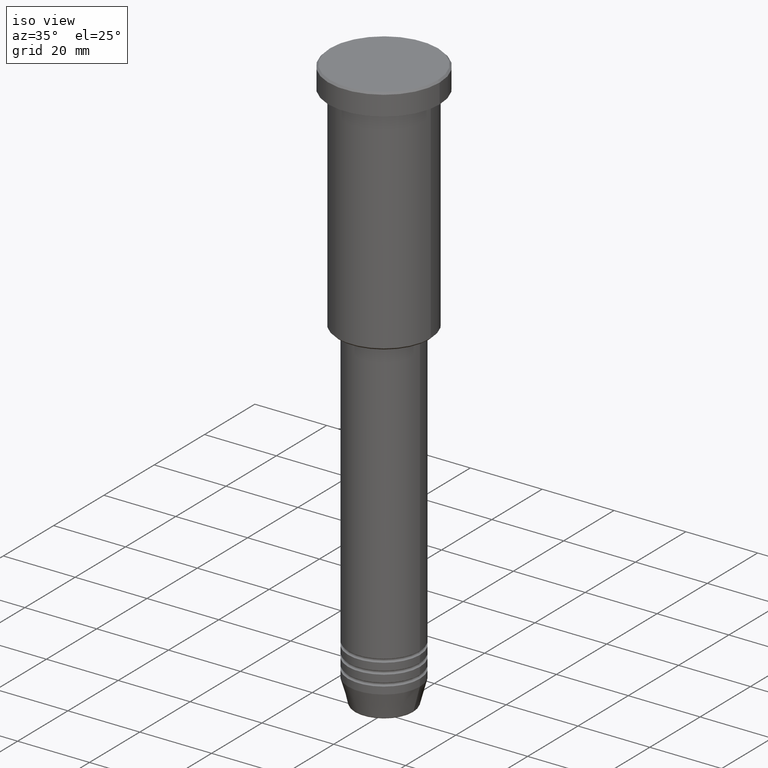
[diagram: clean part render]
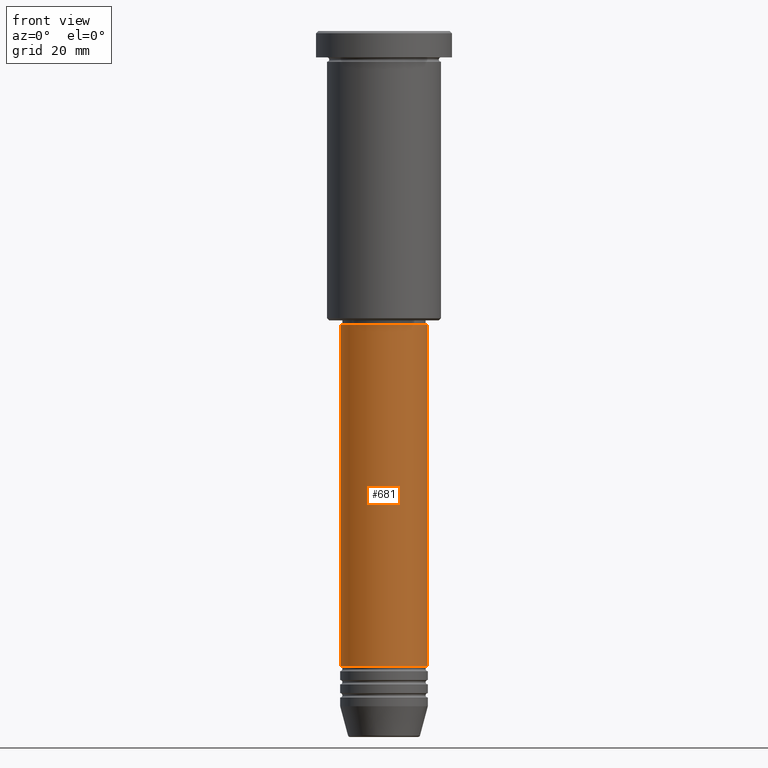
[diagram: tour spotlight — one face highlighted and labeled with its STEP entity id]
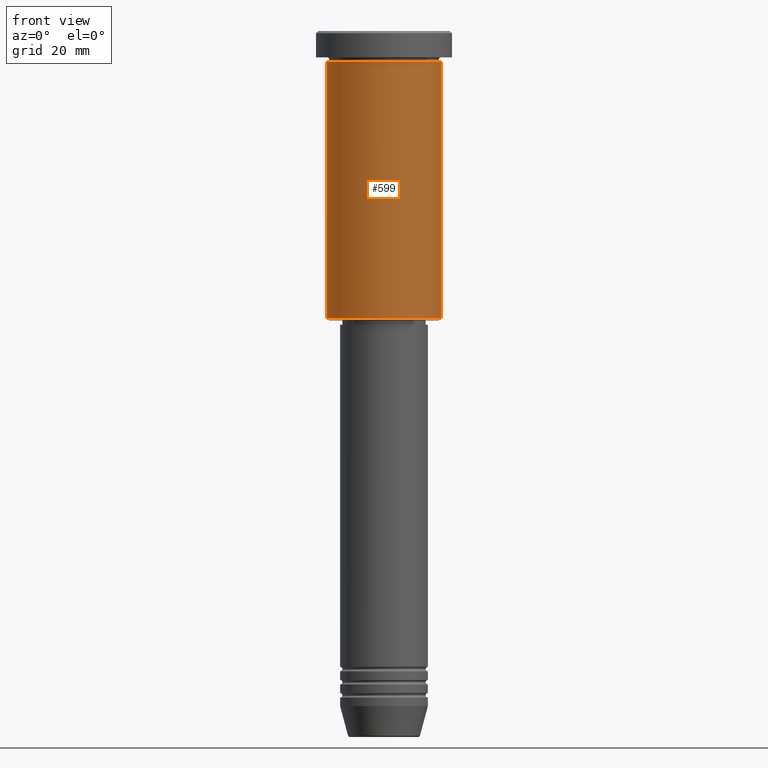
[diagram: tour spotlight — one face highlighted and labeled with its STEP entity id]
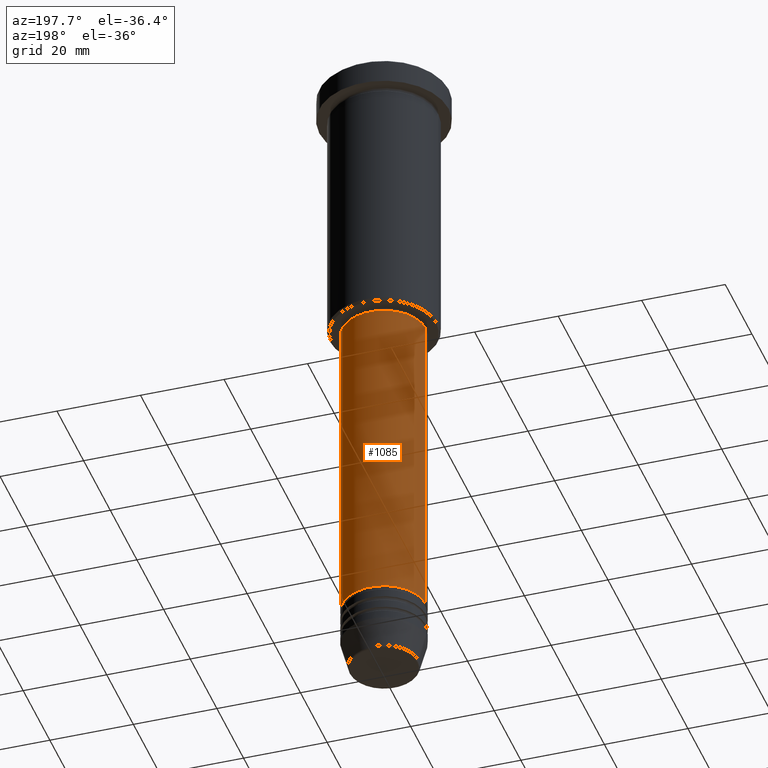
[diagram: tour spotlight — one face highlighted and labeled with its STEP entity id]
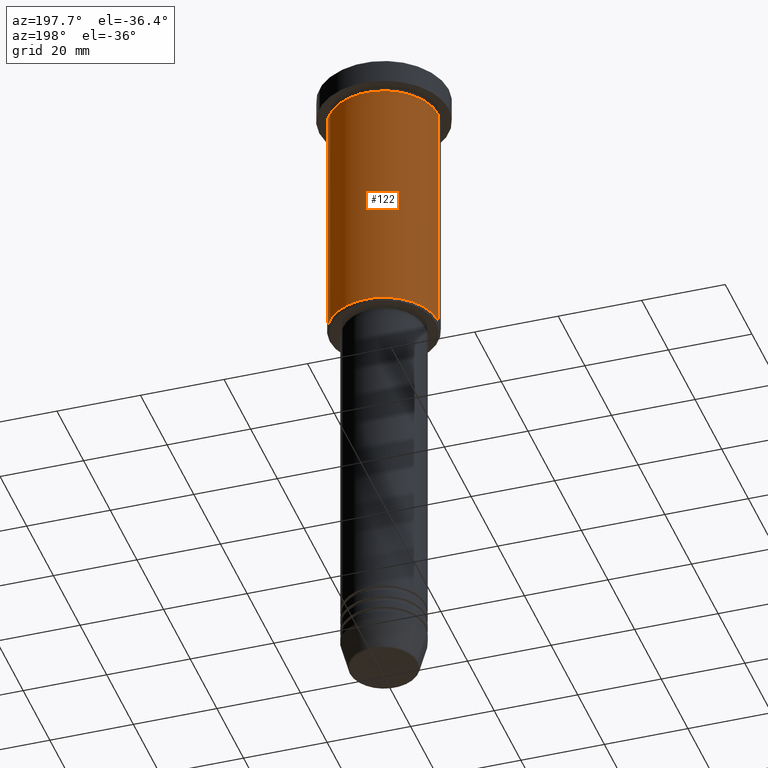
[diagram: tour spotlight — one face highlighted and labeled with its STEP entity id]
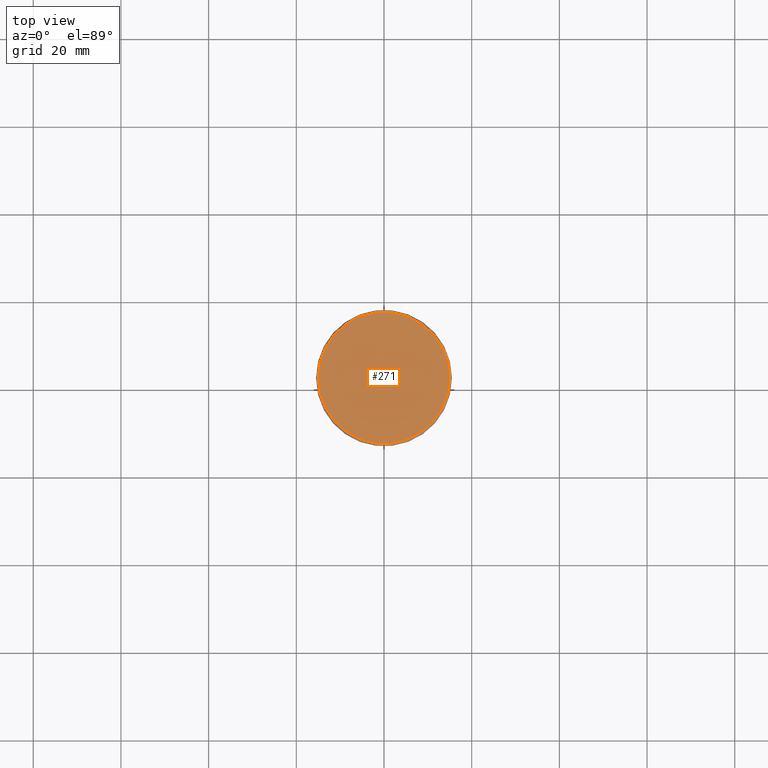
[diagram: tour spotlight — one face highlighted and labeled with its STEP entity id]
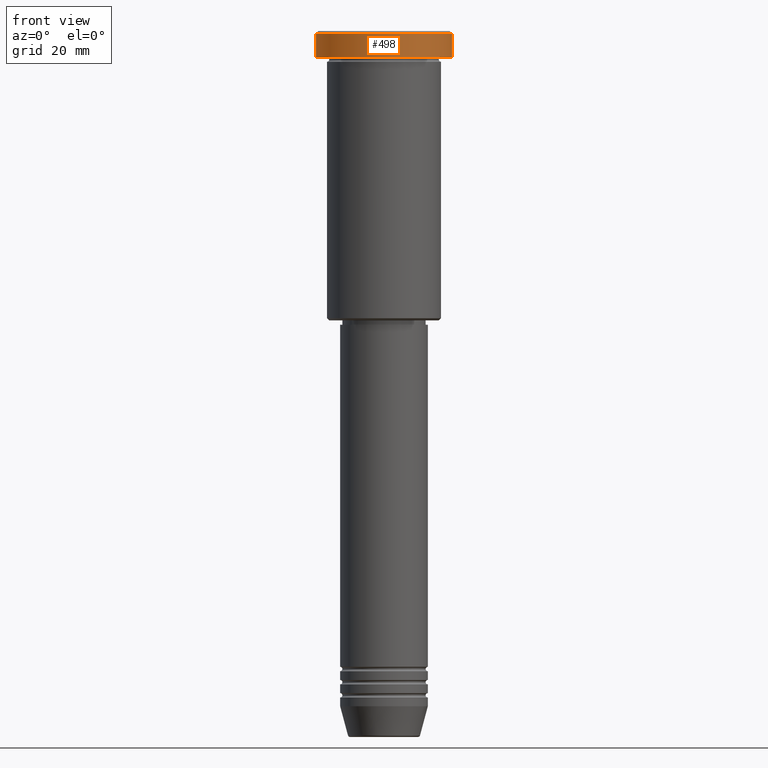
[diagram: tour spotlight — one face highlighted and labeled with its STEP entity id]
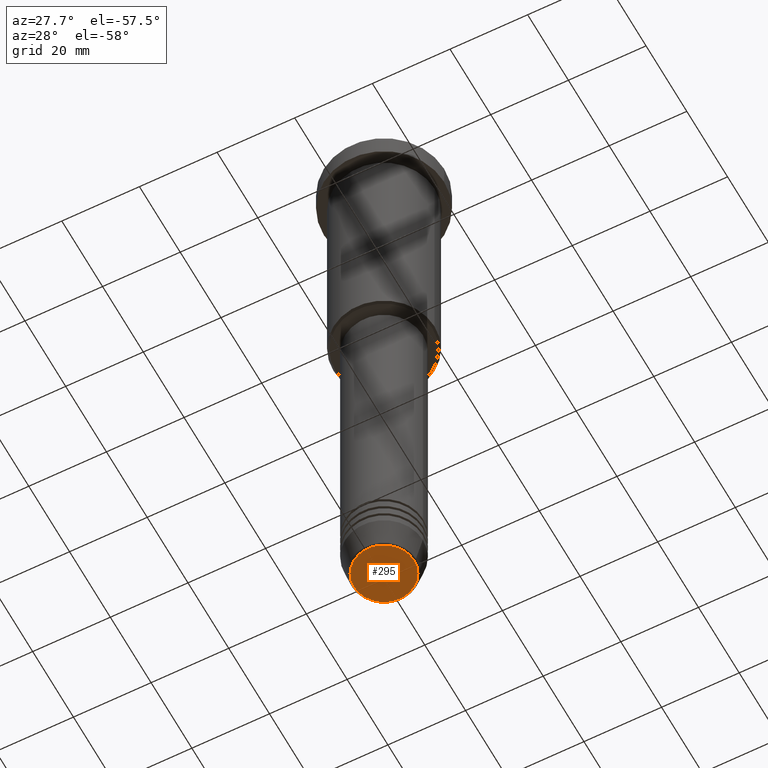
[diagram: tour spotlight — one face highlighted and labeled with its STEP entity id]
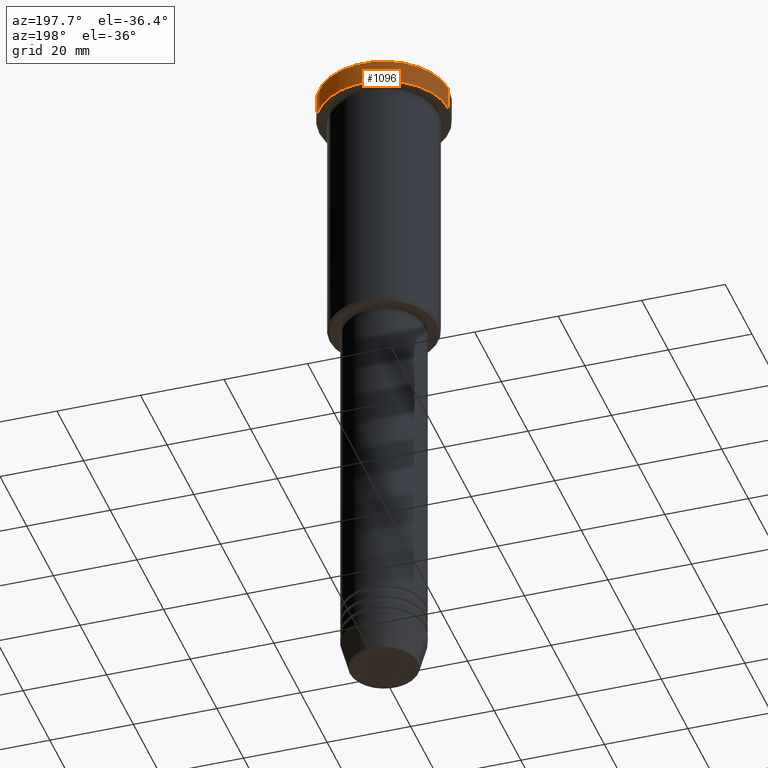
[diagram: tour spotlight — one face highlighted and labeled with its STEP entity id]
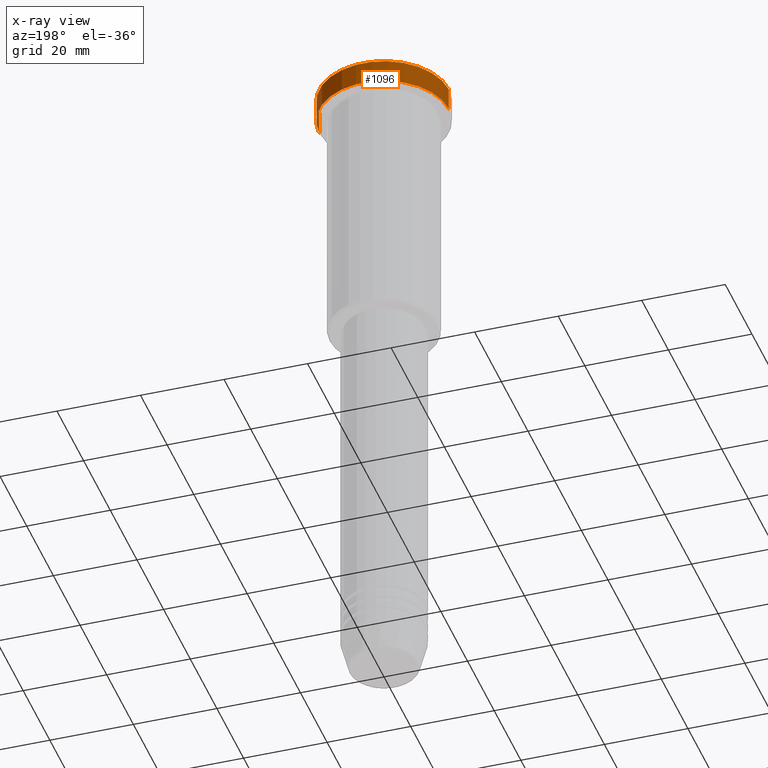
[diagram: x-ray of the same camera — body ghosted, this tour face saturated]
A machine part: a face-by-face anatomy tour. The part has 43 B-rep faces; the first image is the clean iso view, then the 8 largest visible faces are spotlighted one at a time (largest first), each with its STEP entity span.

Face 1 — front view, entity #681. In plain terms, the highlighted cylindrical surface (partial cylindrical patch) has radius 10 mm, axis along (-0, -0, 1).
Definition (entity closure, byte-faithful):
#50 = DIRECTION ( 'NONE',  ( -0.000000000000000000, -0.000000000000000000, 1.000000000000000000 ) ) ;
#79 = ORIENTED_EDGE ( 'NONE', *, *, #749, .T. ) ;
#98 = ORIENTED_EDGE ( 'NONE', *, *, #1171, .T. ) ;
#134 = AXIS2_PLACEMENT_3D ( 'NONE', #160, #50, #502 ) ;
#143 = DIRECTION ( 'NONE',  ( -0.000000000000000000, -0.000000000000000000, 1.000000000000000000 ) ) ;
#160 = CARTESIAN_POINT ( 'NONE',  ( 0.000000000000000000, 0.000000000000000000, -144.9999999999999716 ) ) ;
#169 = CIRCLE ( 'NONE', #855, 10.00000000000000000 ) ;
#193 = DIRECTION ( 'NONE',  ( -0.000000000000000000, -0.000000000000000000, 1.000000000000000000 ) ) ;
#218 = DIRECTION ( 'NONE',  ( 1.000000000000000000, 0.000000000000000000, 0.000000000000000000 ) ) ;
#229 = CARTESIAN_POINT ( 'NONE',  ( 10.00000000000000000, 0.000000000000000000, -144.9999999999999716 ) ) ;
#306 = VERTEX_POINT ( 'NONE', #229 ) ;
#308 = CARTESIAN_POINT ( 'NONE',  ( 0.000000000000000000, 0.000000000000000000, 0.000000000000000000 ) ) ;
#335 = CARTESIAN_POINT ( 'NONE',  ( 10.00000000000000000, 0.000000000000000000, 0.000000000000000000 ) ) ;
#375 = LINE ( 'NONE', #448, #625 ) ;
#384 = CARTESIAN_POINT ( 'NONE',  ( 10.00000000000000000, 0.000000000000000000, -67.00000000000000000 ) ) ;
#396 = VERTEX_POINT ( 'NONE', #621 ) ;
#448 = CARTESIAN_POINT ( 'NONE',  ( -10.00000000000000000, 1.224646799147353256E-15, 0.000000000000000000 ) ) ;
#502 = DIRECTION ( 'NONE',  ( 1.000000000000000000, 0.000000000000000000, 0.000000000000000000 ) ) ;
#522 = LINE ( 'NONE', #335, #688 ) ;
#540 = VERTEX_POINT ( 'NONE', #384 ) ;
#566 = AXIS2_PLACEMENT_3D ( 'NONE', #308, #673, #218 ) ;
#573 = ORIENTED_EDGE ( 'NONE', *, *, #960, .F. ) ;
#621 = CARTESIAN_POINT ( 'NONE',  ( -10.00000000000000000, 1.224646799147353256E-15, -67.00000000000000000 ) ) ;
#625 = VECTOR ( 'NONE', #924, 1000.000000000000000 ) ;
#626 = CIRCLE ( 'NONE', #134, 10.00000000000000000 ) ;
#673 = DIRECTION ( 'NONE',  ( -0.000000000000000000, -0.000000000000000000, 1.000000000000000000 ) ) ;
#681 = ADVANCED_FACE ( 'NONE', ( #755 ), #1120, .T. ) ;
#688 = VECTOR ( 'NONE', #143, 1000.000000000000000 ) ;
#702 = CARTESIAN_POINT ( 'NONE',  ( -10.00000000000000000, 1.224646799147353256E-15, -144.9999999999999716 ) ) ;
#749 = EDGE_CURVE ( 'NONE', #306, #540, #522, .T. ) ;
#755 = FACE_OUTER_BOUND ( 'NONE', #912, .T. ) ;
#855 = AXIS2_PLACEMENT_3D ( 'NONE', #900, #193, #996 ) ;
#900 = CARTESIAN_POINT ( 'NONE',  ( 0.000000000000000000, 0.000000000000000000, -67.00000000000000000 ) ) ;
#912 = EDGE_LOOP ( 'NONE', ( #573, #98, #79, #1036 ) ) ;
#921 = EDGE_CURVE ( 'NONE', #396, #540, #169, .T. ) ;
#924 = DIRECTION ( 'NONE',  ( -0.000000000000000000, -0.000000000000000000, 1.000000000000000000 ) ) ;
#960 = EDGE_CURVE ( 'NONE', #1178, #396, #375, .T. ) ;
#996 = DIRECTION ( 'NONE',  ( 1.000000000000000000, 0.000000000000000000, 0.000000000000000000 ) ) ;
#1036 = ORIENTED_EDGE ( 'NONE', *, *, #921, .F. ) ;
#1120 = CYLINDRICAL_SURFACE ( 'NONE', #566, 10.00000000000000000 ) ;
#1171 = EDGE_CURVE ( 'NONE', #1178, #306, #626, .T. ) ;
#1178 = VERTEX_POINT ( 'NONE', #702 ) ;

Face 2 — front view, entity #599. In plain terms, the highlighted cylindrical surface (partial cylindrical patch) has radius 13 mm, axis along (-0, -0, 1).
Definition (entity closure, byte-faithful):
#14 = CARTESIAN_POINT ( 'NONE',  ( -13.00000000000000000, 1.592040838891559095E-15, -65.49999999999997158 ) ) ;
#21 = DIRECTION ( 'NONE',  ( -0.000000000000000000, -0.000000000000000000, 1.000000000000000000 ) ) ;
#107 = CIRCLE ( 'NONE', #602, 13.00000000000000000 ) ;
#127 = CARTESIAN_POINT ( 'NONE',  ( 13.00000000000000000, 0.000000000000000000, -65.49999999999997158 ) ) ;
#151 = CARTESIAN_POINT ( 'NONE',  ( 13.00000000000000000, 0.000000000000000000, -6.999999999999995559 ) ) ;
#167 = CIRCLE ( 'NONE', #829, 13.00000000000000000 ) ;
#202 = DIRECTION ( 'NONE',  ( -0.000000000000000000, -0.000000000000000000, 1.000000000000000000 ) ) ;
#210 = DIRECTION ( 'NONE',  ( 1.000000000000000000, 0.000000000000000000, 0.000000000000000000 ) ) ;
#216 = EDGE_CURVE ( 'NONE', #220, #558, #107, .T. ) ;
#220 = VERTEX_POINT ( 'NONE', #14 ) ;
#249 = VERTEX_POINT ( 'NONE', #452 ) ;
#250 = CARTESIAN_POINT ( 'NONE',  ( 0.000000000000000000, 0.000000000000000000, -6.999999999999995559 ) ) ;
#278 = ORIENTED_EDGE ( 'NONE', *, *, #848, .F. ) ;
#356 = DIRECTION ( 'NONE',  ( -0.000000000000000000, -0.000000000000000000, 1.000000000000000000 ) ) ;
#404 = ORIENTED_EDGE ( 'NONE', *, *, #534, .T. ) ;
#420 = DIRECTION ( 'NONE',  ( 1.000000000000000000, 0.000000000000000000, 0.000000000000000000 ) ) ;
#442 = CARTESIAN_POINT ( 'NONE',  ( 13.00000000000000000, 0.000000000000000000, 0.000000000000000000 ) ) ;
#452 = CARTESIAN_POINT ( 'NONE',  ( -13.00000000000000000, 1.592040838891559095E-15, -6.999999999999995559 ) ) ;
#497 = CYLINDRICAL_SURFACE ( 'NONE', #605, 13.00000000000000000 ) ;
#534 = EDGE_CURVE ( 'NONE', #558, #826, #655, .T. ) ;
#545 = DIRECTION ( 'NONE',  ( -1.000000000000000000, 0.000000000000000000, 0.000000000000000000 ) ) ;
#558 = VERTEX_POINT ( 'NONE', #127 ) ;
#592 = ORIENTED_EDGE ( 'NONE', *, *, #216, .T. ) ;
#599 = ADVANCED_FACE ( 'NONE', ( #947 ), #497, .T. ) ;
#602 = AXIS2_PLACEMENT_3D ( 'NONE', #1091, #21, #545 ) ;
#605 = AXIS2_PLACEMENT_3D ( 'NONE', #763, #841, #210 ) ;
#609 = DIRECTION ( 'NONE',  ( -0.000000000000000000, -0.000000000000000000, 1.000000000000000000 ) ) ;
#655 = LINE ( 'NONE', #442, #759 ) ;
#691 = VECTOR ( 'NONE', #356, 1000.000000000000000 ) ;
#703 = LINE ( 'NONE', #1066, #691 ) ;
#756 = EDGE_CURVE ( 'NONE', #249, #826, #167, .T. ) ;
#759 = VECTOR ( 'NONE', #202, 1000.000000000000000 ) ;
#763 = CARTESIAN_POINT ( 'NONE',  ( 0.000000000000000000, 0.000000000000000000, 0.000000000000000000 ) ) ;
#826 = VERTEX_POINT ( 'NONE', #151 ) ;
#829 = AXIS2_PLACEMENT_3D ( 'NONE', #250, #609, #420 ) ;
#841 = DIRECTION ( 'NONE',  ( -0.000000000000000000, -0.000000000000000000, 1.000000000000000000 ) ) ;
#848 = EDGE_CURVE ( 'NONE', #220, #249, #703, .T. ) ;
#934 = ORIENTED_EDGE ( 'NONE', *, *, #756, .F. ) ;
#947 = FACE_OUTER_BOUND ( 'NONE', #1098, .T. ) ;
#1066 = CARTESIAN_POINT ( 'NONE',  ( -13.00000000000000000, 1.592040838891559095E-15, 0.000000000000000000 ) ) ;
#1091 = CARTESIAN_POINT ( 'NONE',  ( 0.000000000000000000, 0.000000000000000000, -65.49999999999997158 ) ) ;
#1098 = EDGE_LOOP ( 'NONE', ( #278, #592, #404, #934 ) ) ;

Face 3 — auxiliary view, entity #1085. In plain terms, the highlighted cylindrical surface (partial cylindrical patch) has radius 10 mm, axis along (-0, -0, 1).
Definition (entity closure, byte-faithful):
#119 = ORIENTED_EDGE ( 'NONE', *, *, #513, .T. ) ;
#143 = DIRECTION ( 'NONE',  ( -0.000000000000000000, -0.000000000000000000, 1.000000000000000000 ) ) ;
#197 = EDGE_CURVE ( 'NONE', #540, #396, #622, .T. ) ;
#229 = CARTESIAN_POINT ( 'NONE',  ( 10.00000000000000000, 0.000000000000000000, -144.9999999999999716 ) ) ;
#247 = AXIS2_PLACEMENT_3D ( 'NONE', #753, #1118, #1136 ) ;
#306 = VERTEX_POINT ( 'NONE', #229 ) ;
#335 = CARTESIAN_POINT ( 'NONE',  ( 10.00000000000000000, 0.000000000000000000, 0.000000000000000000 ) ) ;
#375 = LINE ( 'NONE', #448, #625 ) ;
#381 = CARTESIAN_POINT ( 'NONE',  ( 0.000000000000000000, 0.000000000000000000, -67.00000000000000000 ) ) ;
#384 = CARTESIAN_POINT ( 'NONE',  ( 10.00000000000000000, 0.000000000000000000, -67.00000000000000000 ) ) ;
#396 = VERTEX_POINT ( 'NONE', #621 ) ;
#448 = CARTESIAN_POINT ( 'NONE',  ( -10.00000000000000000, 1.224646799147353256E-15, 0.000000000000000000 ) ) ;
#450 = DIRECTION ( 'NONE',  ( -0.000000000000000000, -0.000000000000000000, 1.000000000000000000 ) ) ;
#496 = ORIENTED_EDGE ( 'NONE', *, *, #749, .F. ) ;
#508 = CIRCLE ( 'NONE', #1177, 10.00000000000000000 ) ;
#513 = EDGE_CURVE ( 'NONE', #306, #1178, #508, .T. ) ;
#522 = LINE ( 'NONE', #335, #688 ) ;
#523 = EDGE_LOOP ( 'NONE', ( #119, #944, #1083, #496 ) ) ;
#540 = VERTEX_POINT ( 'NONE', #384 ) ;
#621 = CARTESIAN_POINT ( 'NONE',  ( -10.00000000000000000, 1.224646799147353256E-15, -67.00000000000000000 ) ) ;
#622 = CIRCLE ( 'NONE', #642, 10.00000000000000000 ) ;
#625 = VECTOR ( 'NONE', #924, 1000.000000000000000 ) ;
#642 = AXIS2_PLACEMENT_3D ( 'NONE', #381, #1095, #1182 ) ;
#660 = FACE_OUTER_BOUND ( 'NONE', #523, .T. ) ;
#688 = VECTOR ( 'NONE', #143, 1000.000000000000000 ) ;
#702 = CARTESIAN_POINT ( 'NONE',  ( -10.00000000000000000, 1.224646799147353256E-15, -144.9999999999999716 ) ) ;
#735 = CARTESIAN_POINT ( 'NONE',  ( 0.000000000000000000, 0.000000000000000000, -144.9999999999999716 ) ) ;
#749 = EDGE_CURVE ( 'NONE', #306, #540, #522, .T. ) ;
#753 = CARTESIAN_POINT ( 'NONE',  ( 0.000000000000000000, 0.000000000000000000, 0.000000000000000000 ) ) ;
#839 = CYLINDRICAL_SURFACE ( 'NONE', #247, 10.00000000000000000 ) ;
#924 = DIRECTION ( 'NONE',  ( -0.000000000000000000, -0.000000000000000000, 1.000000000000000000 ) ) ;
#944 = ORIENTED_EDGE ( 'NONE', *, *, #960, .T. ) ;
#960 = EDGE_CURVE ( 'NONE', #1178, #396, #375, .T. ) ;
#1083 = ORIENTED_EDGE ( 'NONE', *, *, #197, .F. ) ;
#1085 = ADVANCED_FACE ( 'NONE', ( #660 ), #839, .T. ) ;
#1095 = DIRECTION ( 'NONE',  ( -0.000000000000000000, -0.000000000000000000, 1.000000000000000000 ) ) ;
#1109 = DIRECTION ( 'NONE',  ( 1.000000000000000000, 0.000000000000000000, 0.000000000000000000 ) ) ;
#1118 = DIRECTION ( 'NONE',  ( -0.000000000000000000, -0.000000000000000000, 1.000000000000000000 ) ) ;
#1136 = DIRECTION ( 'NONE',  ( 1.000000000000000000, 0.000000000000000000, 0.000000000000000000 ) ) ;
#1177 = AXIS2_PLACEMENT_3D ( 'NONE', #735, #450, #1109 ) ;
#1178 = VERTEX_POINT ( 'NONE', #702 ) ;
#1182 = DIRECTION ( 'NONE',  ( 1.000000000000000000, 0.000000000000000000, 0.000000000000000000 ) ) ;

Face 4 — auxiliary view, entity #122. In plain terms, the highlighted cylindrical surface (partial cylindrical patch) has radius 13 mm, axis along (-0, -0, 1).
Definition (entity closure, byte-faithful):
#14 = CARTESIAN_POINT ( 'NONE',  ( -13.00000000000000000, 1.592040838891559095E-15, -65.49999999999997158 ) ) ;
#27 = EDGE_CURVE ( 'NONE', #558, #220, #1180, .T. ) ;
#66 = DIRECTION ( 'NONE',  ( -1.000000000000000000, 0.000000000000000000, 0.000000000000000000 ) ) ;
#122 = ADVANCED_FACE ( 'NONE', ( #897 ), #539, .T. ) ;
#127 = CARTESIAN_POINT ( 'NONE',  ( 13.00000000000000000, 0.000000000000000000, -65.49999999999997158 ) ) ;
#145 = AXIS2_PLACEMENT_3D ( 'NONE', #354, #258, #66 ) ;
#151 = CARTESIAN_POINT ( 'NONE',  ( 13.00000000000000000, 0.000000000000000000, -6.999999999999995559 ) ) ;
#195 = DIRECTION ( 'NONE',  ( -0.000000000000000000, -0.000000000000000000, 1.000000000000000000 ) ) ;
#202 = DIRECTION ( 'NONE',  ( -0.000000000000000000, -0.000000000000000000, 1.000000000000000000 ) ) ;
#217 = EDGE_LOOP ( 'NONE', ( #1149, #844, #227, #1074 ) ) ;
#220 = VERTEX_POINT ( 'NONE', #14 ) ;
#227 = ORIENTED_EDGE ( 'NONE', *, *, #453, .F. ) ;
#249 = VERTEX_POINT ( 'NONE', #452 ) ;
#258 = DIRECTION ( 'NONE',  ( -0.000000000000000000, -0.000000000000000000, 1.000000000000000000 ) ) ;
#307 = AXIS2_PLACEMENT_3D ( 'NONE', #903, #1174, #423 ) ;
#354 = CARTESIAN_POINT ( 'NONE',  ( 0.000000000000000000, 0.000000000000000000, -65.49999999999997158 ) ) ;
#356 = DIRECTION ( 'NONE',  ( -0.000000000000000000, -0.000000000000000000, 1.000000000000000000 ) ) ;
#423 = DIRECTION ( 'NONE',  ( 1.000000000000000000, 0.000000000000000000, 0.000000000000000000 ) ) ;
#442 = CARTESIAN_POINT ( 'NONE',  ( 13.00000000000000000, 0.000000000000000000, 0.000000000000000000 ) ) ;
#452 = CARTESIAN_POINT ( 'NONE',  ( -13.00000000000000000, 1.592040838891559095E-15, -6.999999999999995559 ) ) ;
#453 = EDGE_CURVE ( 'NONE', #826, #249, #644, .T. ) ;
#534 = EDGE_CURVE ( 'NONE', #558, #826, #655, .T. ) ;
#539 = CYLINDRICAL_SURFACE ( 'NONE', #307, 13.00000000000000000 ) ;
#558 = VERTEX_POINT ( 'NONE', #127 ) ;
#640 = CARTESIAN_POINT ( 'NONE',  ( 0.000000000000000000, 0.000000000000000000, -6.999999999999995559 ) ) ;
#644 = CIRCLE ( 'NONE', #1027, 13.00000000000000000 ) ;
#655 = LINE ( 'NONE', #442, #759 ) ;
#691 = VECTOR ( 'NONE', #356, 1000.000000000000000 ) ;
#703 = LINE ( 'NONE', #1066, #691 ) ;
#759 = VECTOR ( 'NONE', #202, 1000.000000000000000 ) ;
#826 = VERTEX_POINT ( 'NONE', #151 ) ;
#844 = ORIENTED_EDGE ( 'NONE', *, *, #848, .T. ) ;
#848 = EDGE_CURVE ( 'NONE', #220, #249, #703, .T. ) ;
#897 = FACE_OUTER_BOUND ( 'NONE', #217, .T. ) ;
#903 = CARTESIAN_POINT ( 'NONE',  ( 0.000000000000000000, 0.000000000000000000, 0.000000000000000000 ) ) ;
#913 = DIRECTION ( 'NONE',  ( 1.000000000000000000, 0.000000000000000000, 0.000000000000000000 ) ) ;
#1027 = AXIS2_PLACEMENT_3D ( 'NONE', #640, #195, #913 ) ;
#1066 = CARTESIAN_POINT ( 'NONE',  ( -13.00000000000000000, 1.592040838891559095E-15, 0.000000000000000000 ) ) ;
#1074 = ORIENTED_EDGE ( 'NONE', *, *, #534, .F. ) ;
#1149 = ORIENTED_EDGE ( 'NONE', *, *, #27, .T. ) ;
#1174 = DIRECTION ( 'NONE',  ( -0.000000000000000000, -0.000000000000000000, 1.000000000000000000 ) ) ;
#1180 = CIRCLE ( 'NONE', #145, 13.00000000000000000 ) ;

Face 5 — top view, entity #271. In plain terms, the highlighted planar face has unit normal (0, -0, 1).
Definition (entity closure, byte-faithful):
#30 = EDGE_LOOP ( 'NONE', ( #486, #861 ) ) ;
#54 = CIRCLE ( 'NONE', #1081, 15.00000000000001421 ) ;
#61 = CARTESIAN_POINT ( 'NONE',  ( 0.000000000000000000, 0.000000000000000000, 0.000000000000000000 ) ) ;
#203 = CARTESIAN_POINT ( 'NONE',  ( 0.000000000000000000, 0.000000000000000000, 0.000000000000000000 ) ) ;
#245 = DIRECTION ( 'NONE',  ( 1.000000000000000000, 0.000000000000000000, 0.000000000000000000 ) ) ;
#271 = ADVANCED_FACE ( 'NONE', ( #296 ), #552, .T. ) ;
#277 = CARTESIAN_POINT ( 'NONE',  ( 15.00000000000001421, 1.867586368699714559E-15, 0.000000000000000000 ) ) ;
#296 = FACE_OUTER_BOUND ( 'NONE', #30, .T. ) ;
#316 = VERTEX_POINT ( 'NONE', #1173 ) ;
#391 = EDGE_CURVE ( 'NONE', #946, #316, #54, .T. ) ;
#412 = AXIS2_PLACEMENT_3D ( 'NONE', #203, #914, #1018 ) ;
#486 = ORIENTED_EDGE ( 'NONE', *, *, #1166, .T. ) ;
#500 = CARTESIAN_POINT ( 'NONE',  ( 0.000000000000000000, 0.000000000000000000, 0.000000000000000000 ) ) ;
#511 = DIRECTION ( 'NONE',  ( -0.000000000000000000, -0.000000000000000000, 1.000000000000000000 ) ) ;
#552 = PLANE ( 'NONE',  #412 ) ;
#607 = AXIS2_PLACEMENT_3D ( 'NONE', #500, #511, #245 ) ;
#795 = DIRECTION ( 'NONE',  ( -0.000000000000000000, -0.000000000000000000, 1.000000000000000000 ) ) ;
#861 = ORIENTED_EDGE ( 'NONE', *, *, #391, .T. ) ;
#892 = CIRCLE ( 'NONE', #607, 15.00000000000001421 ) ;
#914 = DIRECTION ( 'NONE',  ( 0.000000000000000000, -0.000000000000000000, 1.000000000000000000 ) ) ;
#946 = VERTEX_POINT ( 'NONE', #277 ) ;
#1018 = DIRECTION ( 'NONE',  ( 1.000000000000000000, 0.000000000000000000, 0.000000000000000000 ) ) ;
#1077 = DIRECTION ( 'NONE',  ( 1.000000000000000000, 0.000000000000000000, 0.000000000000000000 ) ) ;
#1081 = AXIS2_PLACEMENT_3D ( 'NONE', #61, #795, #1077 ) ;
#1166 = EDGE_CURVE ( 'NONE', #316, #946, #892, .T. ) ;
#1173 = CARTESIAN_POINT ( 'NONE',  ( -15.00000000000001421, 0.000000000000000000, 0.000000000000000000 ) ) ;

Face 6 — front view, entity #498. In plain terms, the highlighted cylindrical surface (partial cylindrical patch) has radius 15.5 mm, axis along (-0, -0, 1).
Definition (entity closure, byte-faithful):
#12 = CARTESIAN_POINT ( 'NONE',  ( 0.000000000000000000, 0.000000000000000000, 0.000000000000000000 ) ) ;
#23 = ORIENTED_EDGE ( 'NONE', *, *, #1044, .T. ) ;
#40 = CARTESIAN_POINT ( 'NONE',  ( -15.50000000000000000, 1.898202538678397557E-15, 0.000000000000000000 ) ) ;
#58 = VERTEX_POINT ( 'NONE', #893 ) ;
#63 = ORIENTED_EDGE ( 'NONE', *, *, #1078, .F. ) ;
#181 = DIRECTION ( 'NONE',  ( 1.000000000000000000, 0.000000000000000000, 0.000000000000000000 ) ) ;
#187 = VERTEX_POINT ( 'NONE', #1102 ) ;
#226 = CARTESIAN_POINT ( 'NONE',  ( -15.50000000000000000, 1.898202538678397557E-15, -5.999999999999995559 ) ) ;
#231 = DIRECTION ( 'NONE',  ( -0.000000000000000000, -0.000000000000000000, 1.000000000000000000 ) ) ;
#275 = CARTESIAN_POINT ( 'NONE',  ( 0.000000000000000000, 0.000000000000000000, -0.4999999999999848455 ) ) ;
#300 = DIRECTION ( 'NONE',  ( -0.000000000000000000, -0.000000000000000000, 1.000000000000000000 ) ) ;
#399 = CIRCLE ( 'NONE', #489, 15.50000000000000000 ) ;
#462 = CYLINDRICAL_SURFACE ( 'NONE', #1142, 15.50000000000000000 ) ;
#473 = LINE ( 'NONE', #40, #1048 ) ;
#484 = DIRECTION ( 'NONE',  ( 1.000000000000000000, 0.000000000000000000, 0.000000000000000000 ) ) ;
#489 = AXIS2_PLACEMENT_3D ( 'NONE', #275, #926, #902 ) ;
#491 = CIRCLE ( 'NONE', #1103, 15.50000000000000000 ) ;
#498 = ADVANCED_FACE ( 'NONE', ( #836 ), #462, .T. ) ;
#551 = EDGE_CURVE ( 'NONE', #58, #187, #399, .T. ) ;
#557 = CARTESIAN_POINT ( 'NONE',  ( 15.50000000000000000, 0.000000000000000000, -5.999999999999995559 ) ) ;
#572 = EDGE_CURVE ( 'NONE', #958, #58, #587, .T. ) ;
#587 = LINE ( 'NONE', #769, #741 ) ;
#648 = ORIENTED_EDGE ( 'NONE', *, *, #551, .T. ) ;
#741 = VECTOR ( 'NONE', #959, 1000.000000000000000 ) ;
#769 = CARTESIAN_POINT ( 'NONE',  ( 15.50000000000000000, 0.000000000000000000, 0.000000000000000000 ) ) ;
#836 = FACE_OUTER_BOUND ( 'NONE', #856, .T. ) ;
#856 = EDGE_LOOP ( 'NONE', ( #63, #23, #1033, #648 ) ) ;
#893 = CARTESIAN_POINT ( 'NONE',  ( 15.50000000000000000, 0.000000000000000000, -0.4999999999999848455 ) ) ;
#902 = DIRECTION ( 'NONE',  ( 1.000000000000000000, 0.000000000000000000, 0.000000000000000000 ) ) ;
#926 = DIRECTION ( 'NONE',  ( 0.000000000000000000, 0.000000000000000000, -1.000000000000000000 ) ) ;
#945 = CARTESIAN_POINT ( 'NONE',  ( 0.000000000000000000, 0.000000000000000000, -5.999999999999995559 ) ) ;
#958 = VERTEX_POINT ( 'NONE', #557 ) ;
#959 = DIRECTION ( 'NONE',  ( -0.000000000000000000, -0.000000000000000000, 1.000000000000000000 ) ) ;
#1021 = VERTEX_POINT ( 'NONE', #226 ) ;
#1033 = ORIENTED_EDGE ( 'NONE', *, *, #572, .T. ) ;
#1044 = EDGE_CURVE ( 'NONE', #1021, #958, #491, .T. ) ;
#1047 = DIRECTION ( 'NONE',  ( -0.000000000000000000, -0.000000000000000000, 1.000000000000000000 ) ) ;
#1048 = VECTOR ( 'NONE', #1047, 1000.000000000000000 ) ;
#1078 = EDGE_CURVE ( 'NONE', #1021, #187, #473, .T. ) ;
#1102 = CARTESIAN_POINT ( 'NONE',  ( -15.50000000000000000, 1.898202538678397557E-15, -0.4999999999999848455 ) ) ;
#1103 = AXIS2_PLACEMENT_3D ( 'NONE', #945, #231, #484 ) ;
#1142 = AXIS2_PLACEMENT_3D ( 'NONE', #12, #300, #181 ) ;

Face 7 — auxiliary view, entity #295. In plain terms, the highlighted planar face has unit normal (0, -0, 1).
Definition (entity closure, byte-faithful):
#9 = DIRECTION ( 'NONE',  ( 1.000000000000000000, 0.000000000000000000, 0.000000000000000000 ) ) ;
#32 = CIRCLE ( 'NONE', #485, 7.740692158992664496 ) ;
#47 = VERTEX_POINT ( 'NONE', #981 ) ;
#82 = EDGE_CURVE ( 'NONE', #608, #47, #32, .T. ) ;
#295 = ADVANCED_FACE ( 'NONE', ( #692 ), #1035, .F. ) ;
#330 = AXIS2_PLACEMENT_3D ( 'NONE', #541, #460, #9 ) ;
#428 = CARTESIAN_POINT ( 'NONE',  ( 0.000000000000000000, 0.000000000000000000, -160.9999999999999716 ) ) ;
#439 = DIRECTION ( 'NONE',  ( 0.000000000000000000, 0.000000000000000000, -1.000000000000000000 ) ) ;
#460 = DIRECTION ( 'NONE',  ( 0.000000000000000000, 0.000000000000000000, -1.000000000000000000 ) ) ;
#485 = AXIS2_PLACEMENT_3D ( 'NONE', #428, #439, #525 ) ;
#490 = CARTESIAN_POINT ( 'NONE',  ( 0.000000000000000000, 0.000000000000000000, -160.9999999999999716 ) ) ;
#525 = DIRECTION ( 'NONE',  ( 1.000000000000000000, 0.000000000000000000, 0.000000000000000000 ) ) ;
#541 = CARTESIAN_POINT ( 'NONE',  ( 0.000000000000000000, 0.000000000000000000, -160.9999999999999716 ) ) ;
#577 = DIRECTION ( 'NONE',  ( 0.000000000000000000, -0.000000000000000000, 1.000000000000000000 ) ) ;
#581 = CARTESIAN_POINT ( 'NONE',  ( -7.740692158992664496, 9.775343368540048996E-16, -160.9999999999999716 ) ) ;
#608 = VERTEX_POINT ( 'NONE', #581 ) ;
#692 = FACE_OUTER_BOUND ( 'NONE', #1016, .T. ) ;
#851 = AXIS2_PLACEMENT_3D ( 'NONE', #490, #577, #858 ) ;
#858 = DIRECTION ( 'NONE',  ( 1.000000000000000000, 0.000000000000000000, 0.000000000000000000 ) ) ;
#882 = ORIENTED_EDGE ( 'NONE', *, *, #82, .T. ) ;
#955 = EDGE_CURVE ( 'NONE', #47, #608, #1126, .T. ) ;
#981 = CARTESIAN_POINT ( 'NONE',  ( 7.740692158992664496, 0.000000000000000000, -160.9999999999999716 ) ) ;
#1016 = EDGE_LOOP ( 'NONE', ( #1058, #882 ) ) ;
#1035 = PLANE ( 'NONE',  #851 ) ;
#1058 = ORIENTED_EDGE ( 'NONE', *, *, #955, .T. ) ;
#1126 = CIRCLE ( 'NONE', #330, 7.740692158992664496 ) ;

Face 8 — auxiliary view, entity #1096. An x-ray twin of the same camera follows (body ghosted, this face saturated) — the face is partly hidden behind the body. In plain terms, the highlighted cylindrical surface (partial cylindrical patch) has radius 15.5 mm, axis along (-0, -0, 1).
Definition (entity closure, byte-faithful):
#10 = ORIENTED_EDGE ( 'NONE', *, *, #572, .F. ) ;
#40 = CARTESIAN_POINT ( 'NONE',  ( -15.50000000000000000, 1.898202538678397557E-15, 0.000000000000000000 ) ) ;
#58 = VERTEX_POINT ( 'NONE', #893 ) ;
#89 = CARTESIAN_POINT ( 'NONE',  ( 0.000000000000000000, 0.000000000000000000, -5.999999999999995559 ) ) ;
#109 = AXIS2_PLACEMENT_3D ( 'NONE', #89, #649, #177 ) ;
#123 = DIRECTION ( 'NONE',  ( 0.000000000000000000, 0.000000000000000000, -1.000000000000000000 ) ) ;
#132 = CIRCLE ( 'NONE', #109, 15.50000000000000000 ) ;
#177 = DIRECTION ( 'NONE',  ( 1.000000000000000000, 0.000000000000000000, 0.000000000000000000 ) ) ;
#187 = VERTEX_POINT ( 'NONE', #1102 ) ;
#201 = ORIENTED_EDGE ( 'NONE', *, *, #1078, .T. ) ;
#215 = DIRECTION ( 'NONE',  ( -0.000000000000000000, -0.000000000000000000, 1.000000000000000000 ) ) ;
#226 = CARTESIAN_POINT ( 'NONE',  ( -15.50000000000000000, 1.898202538678397557E-15, -5.999999999999995559 ) ) ;
#253 = EDGE_LOOP ( 'NONE', ( #449, #201, #293, #10 ) ) ;
#293 = ORIENTED_EDGE ( 'NONE', *, *, #302, .T. ) ;
#302 = EDGE_CURVE ( 'NONE', #187, #58, #343, .T. ) ;
#324 = CARTESIAN_POINT ( 'NONE',  ( 0.000000000000000000, 0.000000000000000000, 0.000000000000000000 ) ) ;
#343 = CIRCLE ( 'NONE', #373, 15.50000000000000000 ) ;
#373 = AXIS2_PLACEMENT_3D ( 'NONE', #770, #123, #481 ) ;
#440 = EDGE_CURVE ( 'NONE', #958, #1021, #132, .T. ) ;
#449 = ORIENTED_EDGE ( 'NONE', *, *, #440, .T. ) ;
#473 = LINE ( 'NONE', #40, #1048 ) ;
#481 = DIRECTION ( 'NONE',  ( 1.000000000000000000, 0.000000000000000000, 0.000000000000000000 ) ) ;
#495 = CYLINDRICAL_SURFACE ( 'NONE', #833, 15.50000000000000000 ) ;
#557 = CARTESIAN_POINT ( 'NONE',  ( 15.50000000000000000, 0.000000000000000000, -5.999999999999995559 ) ) ;
#572 = EDGE_CURVE ( 'NONE', #958, #58, #587, .T. ) ;
#574 = DIRECTION ( 'NONE',  ( 1.000000000000000000, 0.000000000000000000, 0.000000000000000000 ) ) ;
#587 = LINE ( 'NONE', #769, #741 ) ;
#649 = DIRECTION ( 'NONE',  ( -0.000000000000000000, -0.000000000000000000, 1.000000000000000000 ) ) ;
#668 = FACE_OUTER_BOUND ( 'NONE', #253, .T. ) ;
#741 = VECTOR ( 'NONE', #959, 1000.000000000000000 ) ;
#769 = CARTESIAN_POINT ( 'NONE',  ( 15.50000000000000000, 0.000000000000000000, 0.000000000000000000 ) ) ;
#770 = CARTESIAN_POINT ( 'NONE',  ( 0.000000000000000000, 0.000000000000000000, -0.4999999999999848455 ) ) ;
#833 = AXIS2_PLACEMENT_3D ( 'NONE', #324, #215, #574 ) ;
#893 = CARTESIAN_POINT ( 'NONE',  ( 15.50000000000000000, 0.000000000000000000, -0.4999999999999848455 ) ) ;
#958 = VERTEX_POINT ( 'NONE', #557 ) ;
#959 = DIRECTION ( 'NONE',  ( -0.000000000000000000, -0.000000000000000000, 1.000000000000000000 ) ) ;
#1021 = VERTEX_POINT ( 'NONE', #226 ) ;
#1047 = DIRECTION ( 'NONE',  ( -0.000000000000000000, -0.000000000000000000, 1.000000000000000000 ) ) ;
#1048 = VECTOR ( 'NONE', #1047, 1000.000000000000000 ) ;
#1078 = EDGE_CURVE ( 'NONE', #1021, #187, #473, .T. ) ;
#1096 = ADVANCED_FACE ( 'NONE', ( #668 ), #495, .T. ) ;
#1102 = CARTESIAN_POINT ( 'NONE',  ( -15.50000000000000000, 1.898202538678397557E-15, -0.4999999999999848455 ) ) ;